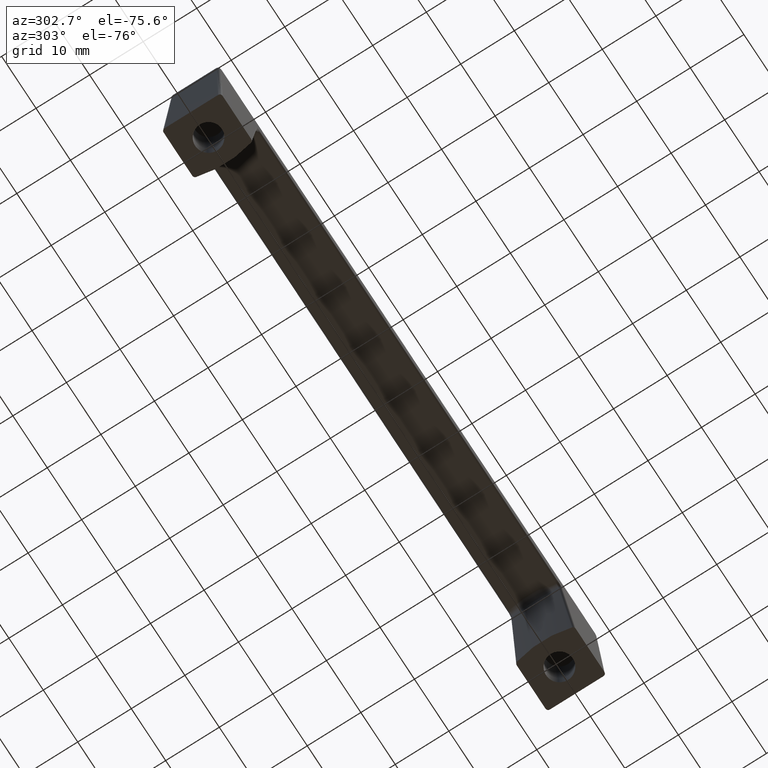
[diagram: clean part render]
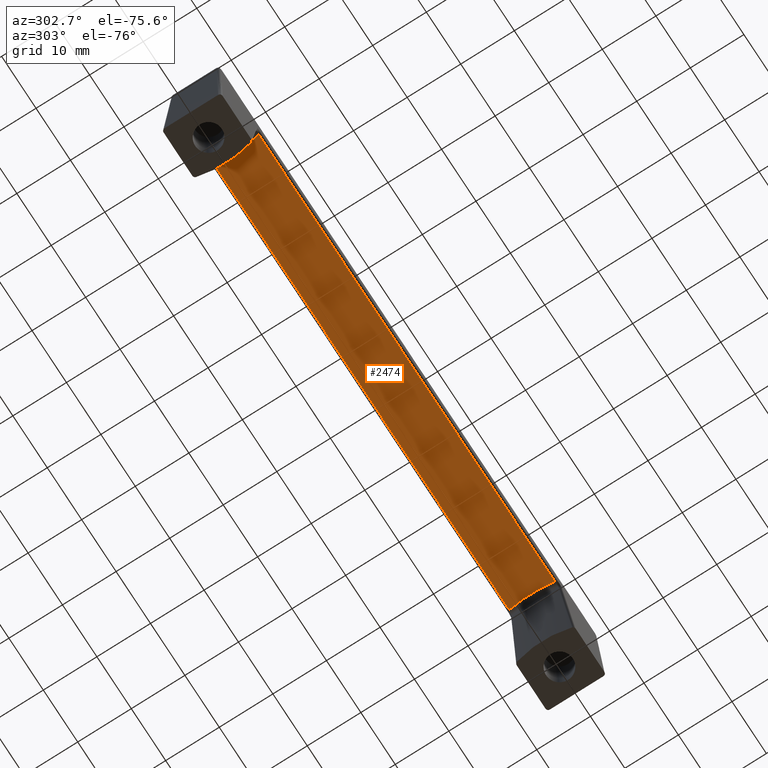
[diagram: same view with one face highlighted and labeled with its STEP entity id]
A machine part, auxiliary view. The second image highlights one B-rep face of the part: STEP entity #2474.
In plain terms, the highlighted face is a freeform B-spline surface patch.
Its self-contained STEP definition (entity closure, byte-faithful):
#484=CARTESIAN_POINT('',(-43.046406854159947,4.260520569106490,18.958716010956749));
#485=VERTEX_POINT('',#484);
#662=CARTESIAN_POINT('',(43.046406854161852,4.260520569116130,18.958716010958849));
#663=VERTEX_POINT('',#662);
#677=CARTESIAN_POINT('',(-43.046406854159947,4.260520569106490,18.958716010956749));
#678=CARTESIAN_POINT('',(43.046406854161852,4.260520569116130,18.958716010958849));
#679=QUASI_UNIFORM_CURVE('',1,(#677,#678),.UNSPECIFIED.,.F.,.U.);
#680=EDGE_CURVE('',#485,#663,#679,.T.);
#979=CARTESIAN_POINT('',(43.046406854159898,-4.260520569106245,18.958716010956749));
#980=VERTEX_POINT('',#979);
#1159=CARTESIAN_POINT('',(-43.046406854161852,-4.260520569115885,18.958716010958849));
#1160=VERTEX_POINT('',#1159);
#1174=CARTESIAN_POINT('',(43.046406854159898,-4.260520569106245,18.958716010956749));
#1175=CARTESIAN_POINT('',(-43.046406854161852,-4.260520569115885,18.958716010958849));
#1176=QUASI_UNIFORM_CURVE('',1,(#1174,#1175),.UNSPECIFIED.,.F.,.U.);
#1177=EDGE_CURVE('',#980,#1160,#1176,.T.);
#2235=CARTESIAN_POINT('',(-43.046406854161809,-4.260520569115894,18.958716010958820));
#2236=CARTESIAN_POINT('',(-42.907719932270759,-3.566207731146114,18.807555121507072));
#2237=CARTESIAN_POINT('',(-42.802700594371167,-2.863199910526579,18.693090394455719));
#2238=CARTESIAN_POINT('',(-42.696849152805918,-1.795342038138262,18.577718803627391));
#2239=CARTESIAN_POINT('',(-42.670196478701818,-1.437160352969261,18.548669045517698));
#2240=CARTESIAN_POINT('',(-42.643488512477781,-0.896460477337423,18.519559027507800));
#2241=CARTESIAN_POINT('',(-42.636799003951559,-0.715655623475565,18.512267881852871));
#2242=CARTESIAN_POINT('',(-42.630137483907923,-0.443577306631078,18.505007242201859));
#2243=CARTESIAN_POINT('',(-42.628479531750770,-0.352685084205223,18.503200178281269));
#2244=CARTESIAN_POINT('',(-42.626302371903982,-0.171300858884472,18.500827210550089));
#2245=CARTESIAN_POINT('',(-42.625780568902123,-0.080731510248525,18.500258478011741));
#2246=CARTESIAN_POINT('',(-42.626142891510128,0.733296944383804,18.500653386929901));
#2247=CARTESIAN_POINT('',(-42.662324693008543,1.449110567847703,18.540089255503901));
#2248=CARTESIAN_POINT('',(-42.803174654767410,2.865903624118005,18.693607091884040));
#2249=CARTESIAN_POINT('',(-42.907854328512322,3.566880563410309,18.807701605797970));
#2250=CARTESIAN_POINT('',(-43.046406854159912,4.260520569106495,18.958716010956749));
#2251=B_SPLINE_CURVE_WITH_KNOTS('',3,(#2235,#2236,#2237,#2238,#2239,#2240,#2241,#2242,#2243,#2244,#2245,#2246,#2247,#2248,#2249,#2250),.UNSPECIFIED.,.F.,.U.,(4,2,2,2,2,2,2,4),(0.0,0.250000000000000,0.375000000000000,0.437500000000000,0.468750000000000,0.500000000000000,0.750000000000000,1.0),.UNSPECIFIED.);
#2252=EDGE_CURVE('',#1160,#485,#2251,.T.);
#2316=CARTESIAN_POINT('',(43.046406854161830,4.260520569116133,18.958716010958849));
#2317=CARTESIAN_POINT('',(42.907719932270773,3.566207731146356,18.807555121507090));
#2318=CARTESIAN_POINT('',(42.802700594371181,2.863199910526824,18.693090394455751));
#2319=CARTESIAN_POINT('',(42.696849152805932,1.795342038138510,18.577718803627391));
#2320=CARTESIAN_POINT('',(42.670196478701811,1.437160352969512,18.548669045517709));
#2321=CARTESIAN_POINT('',(42.643488512477759,0.896460477337676,18.519559027507800));
#2322=CARTESIAN_POINT('',(42.636799003951580,0.715655623475818,18.512267881852878));
#2323=CARTESIAN_POINT('',(42.630137483907937,0.443577306631331,18.505007242201859));
#2324=CARTESIAN_POINT('',(42.628479531750777,0.352685084205475,18.503200178281269));
#2325=CARTESIAN_POINT('',(42.626302371903982,0.171300858884724,18.500827210550089));
#2326=CARTESIAN_POINT('',(42.625780568902123,0.080731510248778,18.500258478011730));
#2327=CARTESIAN_POINT('',(42.626142891510113,-0.733296944383552,18.500653386929908));
#2328=CARTESIAN_POINT('',(42.662324693008529,-1.449110567847454,18.540089255503890));
#2329=CARTESIAN_POINT('',(42.803174654767389,-2.865903624117757,18.693607091884019));
#2330=CARTESIAN_POINT('',(42.907854328512293,-3.566880563410061,18.807701605797941));
#2331=CARTESIAN_POINT('',(43.046406854159883,-4.260520569106250,18.958716010956721));
#2332=B_SPLINE_CURVE_WITH_KNOTS('',3,(#2316,#2317,#2318,#2319,#2320,#2321,#2322,#2323,#2324,#2325,#2326,#2327,#2328,#2329,#2330,#2331),.UNSPECIFIED.,.F.,.U.,(4,2,2,2,2,2,2,4),(0.0,0.250000000000000,0.375000000000000,0.437500000000000,0.468750000000000,0.500000000000000,0.750000000000000,1.0),.UNSPECIFIED.);
#2333=EDGE_CURVE('',#663,#980,#2332,.T.);
#2454=CARTESIAN_POINT('',(-45.198727196869953,4.673880065996414,19.053303950512518));
#2455=CARTESIAN_POINT('',(45.252535205437638,4.673880065996414,19.053303950512518));
#2456=CARTESIAN_POINT('',(-45.198727196869939,-0.001104018911451,17.931328102607779));
#2457=CARTESIAN_POINT('',(45.252535205437638,-0.001104018911451,17.931328102607779));
#2458=CARTESIAN_POINT('',(-45.198727196869932,-4.675967797999453,19.053805115465682));
#2459=CARTESIAN_POINT('',(45.252535205437624,-4.675967797999453,19.053805115465682));
#2467=(BOUNDED_SURFACE()B_SPLINE_SURFACE(1,2,((#2454,#2456,#2458),(#2455,#2457,#2459)),.UNSPECIFIED.,.F.,.F.,.U.)B_SPLINE_SURFACE_WITH_KNOTS((2,2),(3,3),(0.0,90.451262402307592),(0.0,9.480781053039152),.UNSPECIFIED.)GEOMETRIC_REPRESENTATION_ITEM()RATIONAL_B_SPLINE_SURFACE(((0.998326552654330,0.968186698180830,0.993064279916383),(0.998326552654330,0.968186698180830,0.993064279916383)))REPRESENTATION_ITEM('')SURFACE());
#2468=ORIENTED_EDGE('',*,*,#2252,.T.);
#2469=ORIENTED_EDGE('',*,*,#680,.T.);
#2470=ORIENTED_EDGE('',*,*,#2333,.T.);
#2471=ORIENTED_EDGE('',*,*,#1177,.T.);
#2472=EDGE_LOOP('',(#2468,#2469,#2470,#2471));
#2473=FACE_OUTER_BOUND('',#2472,.T.);
#2474=ADVANCED_FACE('',(#2473),#2467,.T.);